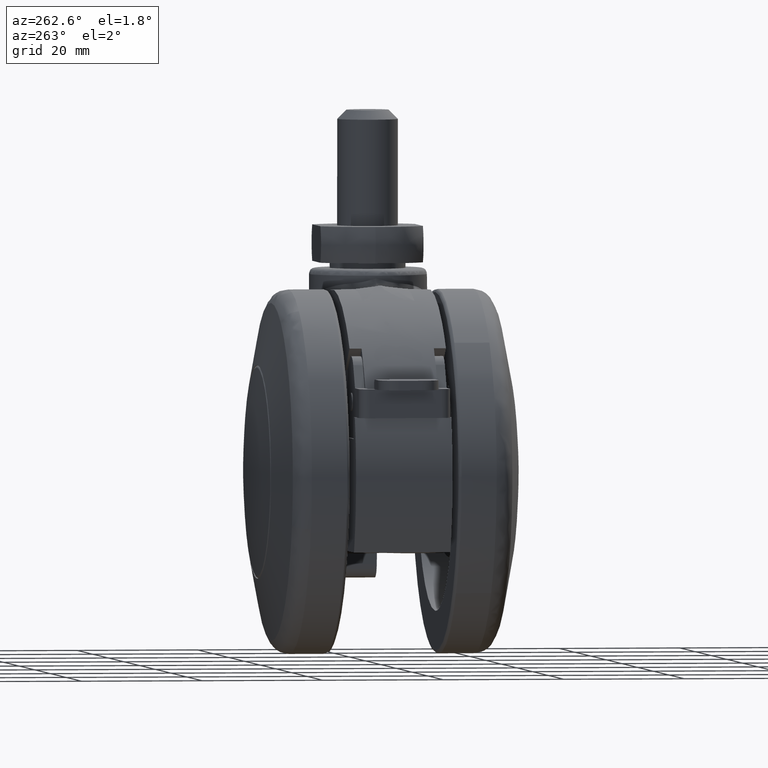
[diagram: clean part render]
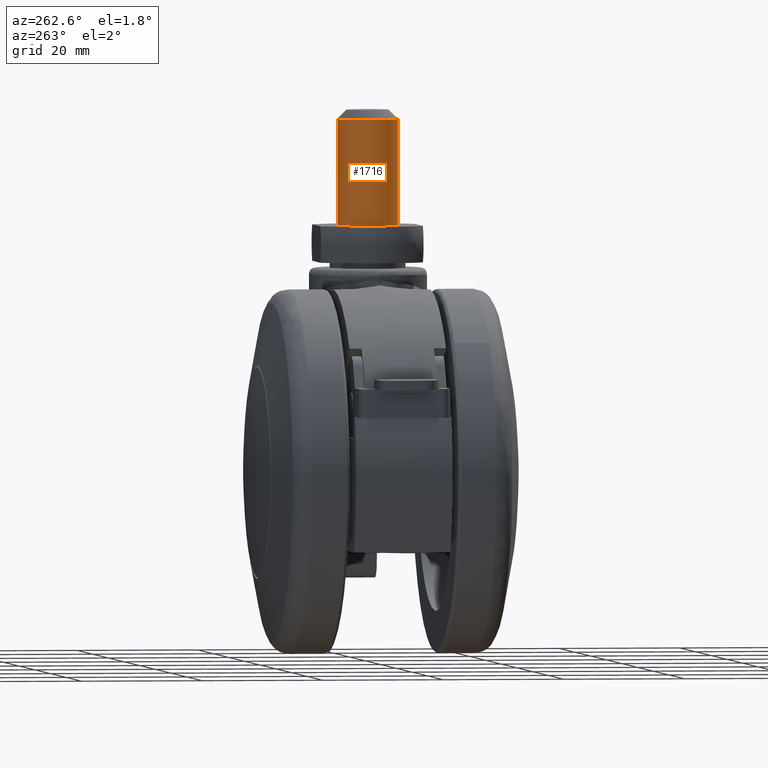
[diagram: same view with one face highlighted and labeled with its STEP entity id]
A machine part, auxiliary view. The second image highlights one B-rep face of the part: STEP entity #1716.
In plain terms, the highlighted face is a freeform B-spline surface patch.
Its self-contained STEP definition (entity closure, byte-faithful):
#1534=CARTESIAN_POINT('',(21.680717893874711,1.758089871980692,57.500000000000000));
#1535=VERTEX_POINT('',#1534);
#1551=CARTESIAN_POINT('',(17.305242697725440,-4.990673992112999,57.499999999986443));
#1552=VERTEX_POINT('',#1551);
#1566=CARTESIAN_POINT('',(17.305242697704561,-4.990673992107483,40.0));
#1567=VERTEX_POINT('',#1566);
#1568=CARTESIAN_POINT('',(17.305242697725440,-4.990673992112999,57.499999999986443));
#1569=CARTESIAN_POINT('',(17.305242697704561,-4.990673992107483,40.0));
#1570=QUASI_UNIFORM_CURVE('',1,(#1568,#1569),.UNSPECIFIED.,.F.,.U.);
#1571=EDGE_CURVE('',#1552,#1567,#1570,.T.);
#1588=CARTESIAN_POINT('',(21.680717893867339,1.758089872000321,40.0));
#1589=VERTEX_POINT('',#1588);
#1603=CARTESIAN_POINT('',(21.680717893874711,1.758089871980692,57.500000000000000));
#1604=CARTESIAN_POINT('',(21.680717893867339,1.758089872000321,40.0));
#1605=QUASI_UNIFORM_CURVE('',1,(#1603,#1604),.UNSPECIFIED.,.F.,.U.);
#1606=EDGE_CURVE('',#1535,#1589,#1605,.T.);
#1611=CARTESIAN_POINT('',(17.305242697674281,-4.990673992109334,57.937500000000000));
#1612=CARTESIAN_POINT('',(12.314568705564952,-5.295916689783620,57.937500000000000));
#1613=CARTESIAN_POINT('',(12.009326007890669,-0.305242697674285,57.937500000000000));
#1614=CARTESIAN_POINT('',(11.704083310216383,4.685431294435048,57.937500000000000));
#1615=CARTESIAN_POINT('',(16.694757302325719,4.990673992109334,57.937500000000000));
#1616=CARTESIAN_POINT('',(20.381847909015328,5.216186114346709,57.937500000000000));
#1617=CARTESIAN_POINT('',(21.680717893883283,1.758089871957861,57.937499999999993));
#1618=CARTESIAN_POINT('',(17.305242697674281,-4.990673992109334,39.551562499999989));
#1619=CARTESIAN_POINT('',(12.314568705564952,-5.295916689783620,39.551562499999982));
#1620=CARTESIAN_POINT('',(12.009326007890669,-0.305242697674285,39.551562499999989));
#1621=CARTESIAN_POINT('',(11.704083310216383,4.685431294435048,39.551562499999982));
#1622=CARTESIAN_POINT('',(16.694757302325719,4.990673992109334,39.551562499999989));
#1623=CARTESIAN_POINT('',(20.381847909015328,5.216186114346709,39.551562499999989));
#1624=CARTESIAN_POINT('',(21.680717893883283,1.758089871957861,39.551562499999989));
#1632=(BOUNDED_SURFACE()B_SPLINE_SURFACE(2,1,((#1611,#1618),(#1612,#1619),(#1613,#1620),(#1614,#1621),(#1615,#1622),(#1616,#1623),(#1617,#1624)),.UNSPECIFIED.,.F.,.F.,.U.)B_SPLINE_SURFACE_WITH_KNOTS((3,2,2,3),(2,2),(0.0,8.284271247461899,16.568542494923800,23.195959492893319),(0.0,18.385937500000011),.UNSPECIFIED.)GEOMETRIC_REPRESENTATION_ITEM()RATIONAL_B_SPLINE_SURFACE(((1.0,1.0),(0.707106781186548,0.707106781186548),(1.0,1.0),(0.707106781186548,0.707106781186548),(1.0,1.0),(0.765685424949238,0.765685424949238),(0.906274169979695,0.906274169979695)))REPRESENTATION_ITEM('')SURFACE());
#1633=CARTESIAN_POINT('',(16.409828826084730,4.965047631823550,57.499999999920277));
#1634=VERTEX_POINT('',#1633);
#1635=CARTESIAN_POINT('',(16.409828826084727,4.965047631823550,57.499999999920277));
#1636=CARTESIAN_POINT('',(16.703879401111799,5.000000000000001,57.500000000000000));
#1637=CARTESIAN_POINT('',(17.0,5.0,57.500000000000000));
#1638=CARTESIAN_POINT('',(20.463047978436009,5.0,57.499999999999979));
#1639=CARTESIAN_POINT('',(21.680717893874718,1.758089871980692,57.500000000000000));
#1647=(BOUNDED_CURVE()B_SPLINE_CURVE(2,(#1635,#1636,#1637,#1638,#1639),.UNSPECIFIED.,.F.,.U.)B_SPLINE_CURVE_WITH_KNOTS((3,2,3),(0.229562473473295,0.250000000000000,0.440284170897368),.UNSPECIFIED.)CURVE()GEOMETRIC_REPRESENTATION_ITEM()RATIONAL_B_SPLINE_CURVE((0.956026754104880,0.976055948284032,1.0,0.777068226786483,0.893499554633880))REPRESENTATION_ITEM(''));
#1648=EDGE_CURVE('',#1634,#1535,#1647,.T.);
#1649=ORIENTED_EDGE('',*,*,#1648,.T.);
#1650=ORIENTED_EDGE('',*,*,#1606,.T.);
#1651=CARTESIAN_POINT('',(12.0,0.0,40.0));
#1652=VERTEX_POINT('',#1651);
#1653=CARTESIAN_POINT('',(12.0,0.0,40.0));
#1654=CARTESIAN_POINT('',(12.0,5.000000000000001,39.999999999999993));
#1655=CARTESIAN_POINT('',(17.0,5.0,40.0));
#1656=CARTESIAN_POINT('',(20.463047978404983,5.0,40.0));
#1657=CARTESIAN_POINT('',(21.680717893867335,1.758089872000321,40.0));
#1665=(BOUNDED_CURVE()B_SPLINE_CURVE(2,(#1653,#1654,#1655,#1656,#1657),.UNSPECIFIED.,.F.,.U.)B_SPLINE_CURVE_WITH_KNOTS((3,2,3),(0.0,0.250000000000000,0.440284170896044),.UNSPECIFIED.)CURVE()GEOMETRIC_REPRESENTATION_ITEM()RATIONAL_B_SPLINE_CURVE((1.0,0.707106781186548,1.0,0.777068226788035,0.893499554632259))REPRESENTATION_ITEM(''));
#1666=EDGE_CURVE('',#1652,#1589,#1665,.T.);
#1667=ORIENTED_EDGE('',*,*,#1666,.F.);
#1668=CARTESIAN_POINT('',(17.305242697704553,-4.990673992107483,40.000000000000007));
#1669=CARTESIAN_POINT('',(17.152763816523297,-5.0,40.0));
#1670=CARTESIAN_POINT('',(17.0,-5.0,40.0));
#1671=CARTESIAN_POINT('',(12.0,-5.000000000000001,39.999999999999993));
#1672=CARTESIAN_POINT('',(12.0,0.0,40.0));
#1680=(BOUNDED_CURVE()B_SPLINE_CURVE(2,(#1668,#1669,#1670,#1671,#1672),.UNSPECIFIED.,.F.,.U.)B_SPLINE_CURVE_WITH_KNOTS((3,2,3),(0.739332962239875,0.750000000000000,1.0),.UNSPECIFIED.)CURVE()GEOMETRIC_REPRESENTATION_ITEM()RATIONAL_B_SPLINE_CURVE((0.976072041668715,0.987502787900929,1.0,0.707106781186548,1.0))REPRESENTATION_ITEM(''));
#1681=EDGE_CURVE('',#1567,#1652,#1680,.T.);
#1682=ORIENTED_EDGE('',*,*,#1681,.F.);
#1683=ORIENTED_EDGE('',*,*,#1571,.F.);
#1684=CARTESIAN_POINT('',(12.0,0.0,57.500000000000000));
#1685=VERTEX_POINT('',#1684);
#1686=CARTESIAN_POINT('',(17.305242697725433,-4.990673992112999,57.499999999986443));
#1687=CARTESIAN_POINT('',(17.152763816594714,-5.0,57.499999999999993));
#1688=CARTESIAN_POINT('',(17.0,-5.0,57.500000000000000));
#1689=CARTESIAN_POINT('',(12.0,-5.000000000000001,57.499999999999986));
#1690=CARTESIAN_POINT('',(12.0,0.0,57.500000000000000));
#1698=(BOUNDED_CURVE()B_SPLINE_CURVE(2,(#1686,#1687,#1688,#1689,#1690),.UNSPECIFIED.,.F.,.U.)B_SPLINE_CURVE_WITH_KNOTS((3,2,3),(0.739332962234951,0.750000000000000,1.0),.UNSPECIFIED.)CURVE()GEOMETRIC_REPRESENTATION_ITEM()RATIONAL_B_SPLINE_CURVE((0.976072041658163,0.987502787895161,1.0,0.707106781186548,1.0))REPRESENTATION_ITEM(''));
#1699=EDGE_CURVE('',#1552,#1685,#1698,.T.);
#1700=ORIENTED_EDGE('',*,*,#1699,.T.);
#1701=CARTESIAN_POINT('',(12.0,0.0,57.500000000000000));
#1702=CARTESIAN_POINT('',(11.999999999999998,4.440872628636200,57.500000000000000));
#1703=CARTESIAN_POINT('',(16.409828826084730,4.965047631823550,57.499999999920284));
#1711=(BOUNDED_CURVE()B_SPLINE_CURVE(2,(#1701,#1702,#1703),.UNSPECIFIED.,.F.,.U.)B_SPLINE_CURVE_WITH_KNOTS((3,3),(0.0,0.229562473473295),.UNSPECIFIED.)CURVE()GEOMETRIC_REPRESENTATION_ITEM()RATIONAL_B_SPLINE_CURVE((1.0,0.731050832902515,0.956026754104879))REPRESENTATION_ITEM(''));
#1712=EDGE_CURVE('',#1685,#1634,#1711,.T.);
#1713=ORIENTED_EDGE('',*,*,#1712,.T.);
#1714=EDGE_LOOP('',(#1649,#1650,#1667,#1682,#1683,#1700,#1713));
#1715=FACE_OUTER_BOUND('',#1714,.T.);
#1716=ADVANCED_FACE('',(#1715),#1632,.T.);